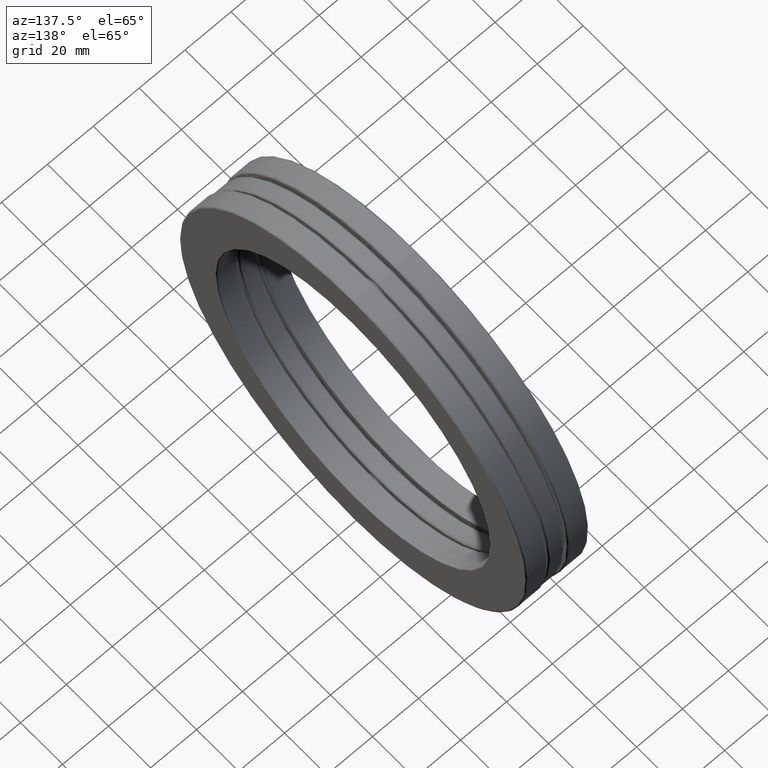
[diagram: clean part render]
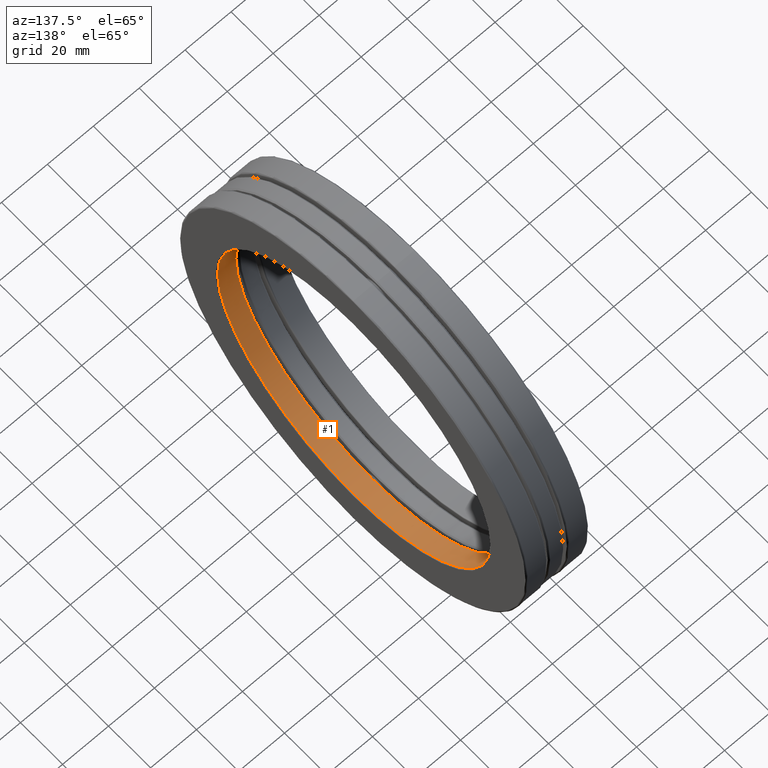
[diagram: same view with one face highlighted and labeled with its STEP entity id]
A machine part, auxiliary view. The second image highlights one B-rep face of the part: STEP entity #1.
In plain terms, the highlighted cylindrical surface (bore or boss wall) has radius 64.9986 mm, axis along (-1, -0, -0).
Its self-contained STEP definition (entity closure, byte-faithful):
#1 = ADVANCED_FACE ( 'NONE', ( #8, #143 ), #30, .F. ) ;
#4 = CARTESIAN_POINT ( 'NONE',  ( 0.5115000000000016200, 0.0000000000000000000, 0.0000000000000000000 ) ) ;
#8 = FACE_OUTER_BOUND ( 'NONE', #462, .T. ) ;
#15 = AXIS2_PLACEMENT_3D ( 'NONE', #577, #312, #757 ) ;
#30 = CYLINDRICAL_SURFACE ( 'NONE', #15, 2.559000000000000200 ) ;
#113 = VERTEX_POINT ( 'NONE', #609 ) ;
#131 = AXIS2_PLACEMENT_3D ( 'NONE', #4, #519, #457 ) ;
#143 = FACE_OUTER_BOUND ( 'NONE', #729, .T. ) ;
#235 = ORIENTED_EDGE ( 'NONE', *, *, #316, .T. ) ;
#294 = CARTESIAN_POINT ( 'NONE',  ( 0.1971702100000013400, 0.0000000000000000000, 0.0000000000000000000 ) ) ;
#312 = DIRECTION ( 'NONE',  ( -1.000000000000000000, -0.0000000000000000000, -0.0000000000000000000 ) ) ;
#316 = EDGE_CURVE ( 'NONE', #113, #113, #380, .T. ) ;
#347 = CARTESIAN_POINT ( 'NONE',  ( 0.5115000000000016200, 0.0000000000000000000, 2.559000000000000200 ) ) ;
#362 = DIRECTION ( 'NONE',  ( 0.0000000000000000000, 0.0000000000000000000, 1.000000000000000000 ) ) ;
#380 = CIRCLE ( 'NONE', #619, 2.559000000000000200 ) ;
#386 = CIRCLE ( 'NONE', #131, 2.559000000000000200 ) ;
#420 = VERTEX_POINT ( 'NONE', #347 ) ;
#457 = DIRECTION ( 'NONE',  ( 0.0000000000000000000, 0.0000000000000000000, 1.000000000000000000 ) ) ;
#458 = EDGE_CURVE ( 'NONE', #420, #420, #386, .T. ) ;
#462 = EDGE_LOOP ( 'NONE', ( #235 ) ) ;
#519 = DIRECTION ( 'NONE',  ( -1.000000000000000000, -0.0000000000000000000, -0.0000000000000000000 ) ) ;
#577 = CARTESIAN_POINT ( 'NONE',  ( 0.0000000000000000000, 0.0000000000000000000, 0.0000000000000000000 ) ) ;
#609 = CARTESIAN_POINT ( 'NONE',  ( 0.1971702100000013400, 0.0000000000000000000, 2.559000000000000200 ) ) ;
#619 = AXIS2_PLACEMENT_3D ( 'NONE', #294, #746, #362 ) ;
#729 = EDGE_LOOP ( 'NONE', ( #802 ) ) ;
#746 = DIRECTION ( 'NONE',  ( -1.000000000000000000, -0.0000000000000000000, -0.0000000000000000000 ) ) ;
#757 = DIRECTION ( 'NONE',  ( 0.0000000000000000000, 0.0000000000000000000, 1.000000000000000000 ) ) ;
#802 = ORIENTED_EDGE ( 'NONE', *, *, #458, .F. ) ;